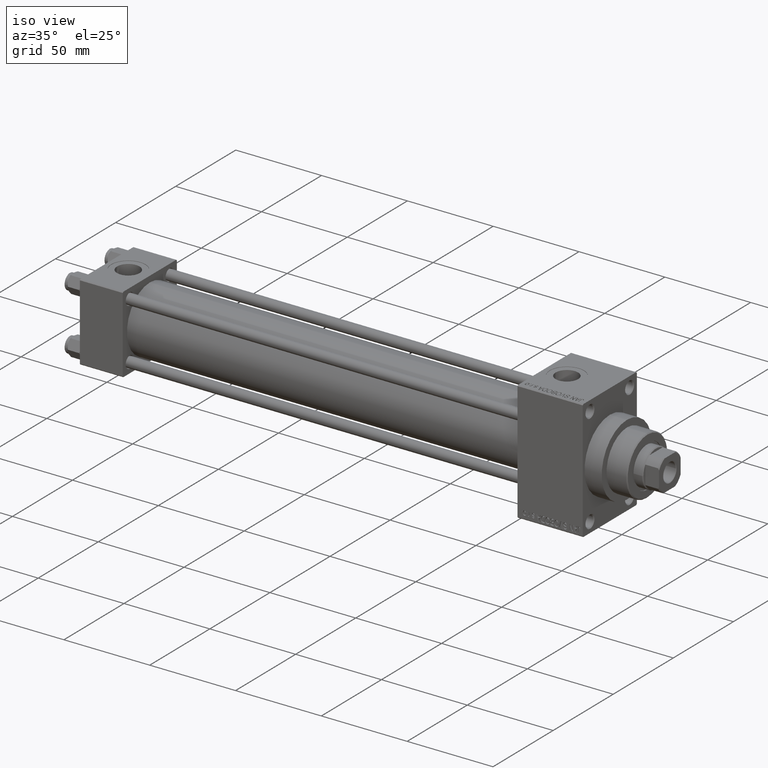
[diagram: clean part render]
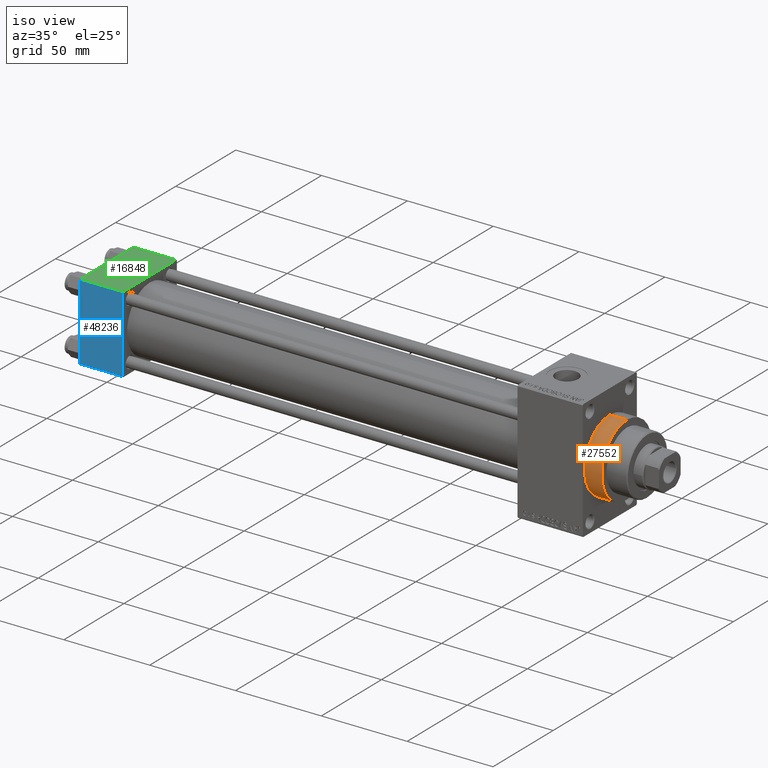
[diagram: same view with three faces highlighted in distinct colors, each labeled with its STEP entity id]
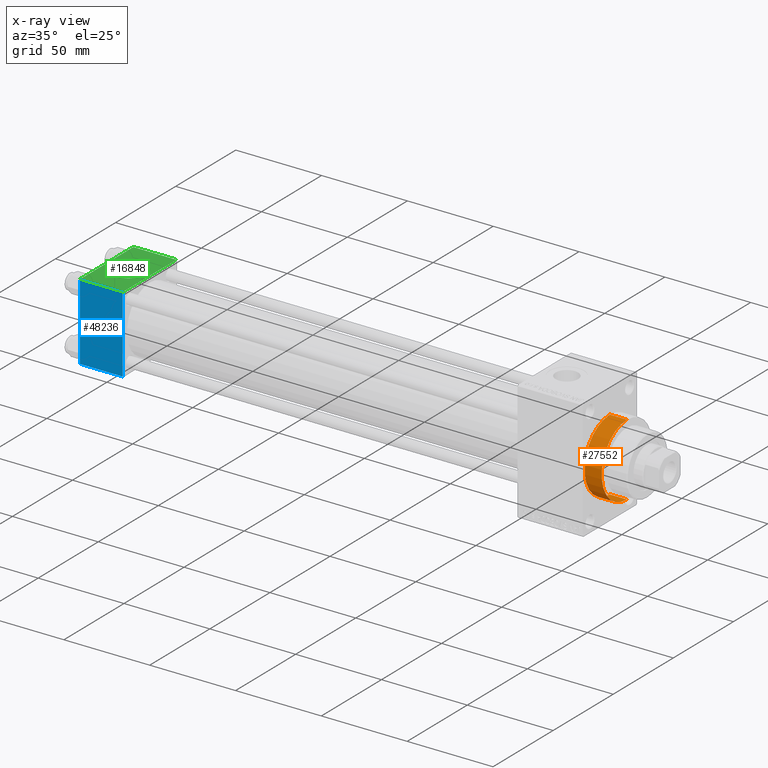
[diagram: x-ray of the same camera — body ghosted, the three highlighted faces saturated]
A machine part, iso view with three faces highlighted in distinct colors.
The next image is the same camera in x-ray (body ghosted, the three faces saturated) — at least one of them is partly hidden behind the body in this view.
Their STEP definitions:

[orange] entity #27552 — the highlighted cylindrical surface (partial cylindrical patch) has radius 21 mm, axis along (-1, -0, -0).
#678 = CARTESIAN_POINT ( 'NONE',  ( 303.0000000000000000, 0.000000000000000000, 21.00000000000000000 ) ) ;
#1925 = VERTEX_POINT ( 'NONE', #37284 ) ;
#4642 = CARTESIAN_POINT ( 'NONE',  ( 303.0000000000000000, 2.571758278209441661E-15, -21.00000000000000000 ) ) ;
#4906 = CARTESIAN_POINT ( 'NONE',  ( 293.0000000000000000, 0.000000000000000000, 21.00000000000000000 ) ) ;
#6281 = AXIS2_PLACEMENT_3D ( 'NONE', #22401, #22879, #14933 ) ;
#7090 = ORIENTED_EDGE ( 'NONE', *, *, #15720, .F. ) ;
#7867 = LINE ( 'NONE', #42134, #33520 ) ;
#7983 = DIRECTION ( 'NONE',  ( 1.000000000000000000, 0.000000000000000000, 0.000000000000000000 ) ) ;
#8349 = DIRECTION ( 'NONE',  ( -1.000000000000000000, -0.000000000000000000, -0.000000000000000000 ) ) ;
#9586 = EDGE_CURVE ( 'NONE', #46382, #25938, #9643, .T. ) ;
#9643 = CIRCLE ( 'NONE', #27090, 21.00000000000000000 ) ;
#10982 = DIRECTION ( 'NONE',  ( 0.000000000000000000, 0.000000000000000000, -1.000000000000000000 ) ) ;
#14271 = DIRECTION ( 'NONE',  ( 0.000000000000000000, 0.000000000000000000, 1.000000000000000000 ) ) ;
#14928 = CARTESIAN_POINT ( 'NONE',  ( 303.0000000000000000, 0.000000000000000000, 21.00000000000000000 ) ) ;
#14933 = DIRECTION ( 'NONE',  ( 0.000000000000000000, 0.000000000000000000, -1.000000000000000000 ) ) ;
#15720 = EDGE_CURVE ( 'NONE', #25938, #1925, #7867, .T. ) ;
#17693 = ORIENTED_EDGE ( 'NONE', *, *, #38659, .T. ) ;
#18011 = DIRECTION ( 'NONE',  ( -1.000000000000000000, -0.000000000000000000, -0.000000000000000000 ) ) ;
#22401 = CARTESIAN_POINT ( 'NONE',  ( 293.0000000000000000, 0.000000000000000000, 0.000000000000000000 ) ) ;
#22879 = DIRECTION ( 'NONE',  ( 1.000000000000000000, 0.000000000000000000, 0.000000000000000000 ) ) ;
#25305 = VECTOR ( 'NONE', #30322, 1000.000000000000000 ) ;
#25474 = CARTESIAN_POINT ( 'NONE',  ( 303.0000000000000000, 0.000000000000000000, 0.000000000000000000 ) ) ;
#25938 = VERTEX_POINT ( 'NONE', #4642 ) ;
#27090 = AXIS2_PLACEMENT_3D ( 'NONE', #38034, #7983, #10982 ) ;
#27552 = ADVANCED_FACE ( 'NONE', ( #36885 ), #44344, .T. ) ;
#29039 = AXIS2_PLACEMENT_3D ( 'NONE', #25474, #18011, #14271 ) ;
#29073 = ORIENTED_EDGE ( 'NONE', *, *, #31440, .T. ) ;
#29140 = CIRCLE ( 'NONE', #6281, 21.00000000000000000 ) ;
#30322 = DIRECTION ( 'NONE',  ( -1.000000000000000000, -0.000000000000000000, -0.000000000000000000 ) ) ;
#31440 = EDGE_CURVE ( 'NONE', #35130, #1925, #29140, .T. ) ;
#33520 = VECTOR ( 'NONE', #8349, 1000.000000000000000 ) ;
#33794 = LINE ( 'NONE', #14928, #25305 ) ;
#35088 = EDGE_LOOP ( 'NONE', ( #7090, #36739, #17693, #29073 ) ) ;
#35130 = VERTEX_POINT ( 'NONE', #4906 ) ;
#36739 = ORIENTED_EDGE ( 'NONE', *, *, #9586, .F. ) ;
#36885 = FACE_OUTER_BOUND ( 'NONE', #35088, .T. ) ;
#37284 = CARTESIAN_POINT ( 'NONE',  ( 293.0000000000000000, 2.571758278209441661E-15, -21.00000000000000000 ) ) ;
#38034 = CARTESIAN_POINT ( 'NONE',  ( 303.0000000000000000, 0.000000000000000000, 0.000000000000000000 ) ) ;
#38659 = EDGE_CURVE ( 'NONE', #46382, #35130, #33794, .T. ) ;
#42134 = CARTESIAN_POINT ( 'NONE',  ( 303.0000000000000000, 2.571758278209441661E-15, -21.00000000000000000 ) ) ;
#44344 = CYLINDRICAL_SURFACE ( 'NONE', #29039, 21.00000000000000000 ) ;
#46382 = VERTEX_POINT ( 'NONE', #678 ) ;

[blue] entity #48236 — the highlighted planar face has unit normal (0, 1, 0).
#2169 = VERTEX_POINT ( 'NONE', #29877 ) ;
#2190 = VECTOR ( 'NONE', #11076, 1000.000000000000000 ) ;
#2599 = CARTESIAN_POINT ( 'NONE',  ( 25.00000000000000000, -22.50000000000000000, 22.50000000000000000 ) ) ;
#3801 = DIRECTION ( 'NONE',  ( 0.000000000000000000, 0.000000000000000000, -1.000000000000000000 ) ) ;
#4560 = ORIENTED_EDGE ( 'NONE', *, *, #48311, .F. ) ;
#5414 = CARTESIAN_POINT ( 'NONE',  ( 25.00000000000000000, -22.50000000000000000, -21.99999999999998579 ) ) ;
#6129 = ORIENTED_EDGE ( 'NONE', *, *, #19772, .T. ) ;
#8860 = EDGE_LOOP ( 'NONE', ( #42587, #6129, #4560, #42039 ) ) ;
#11076 = DIRECTION ( 'NONE',  ( 0.000000000000000000, 0.000000000000000000, -1.000000000000000000 ) ) ;
#11876 = DIRECTION ( 'NONE',  ( 1.000000000000000000, 0.000000000000000000, 0.000000000000000000 ) ) ;
#13437 = VERTEX_POINT ( 'NONE', #13500 ) ;
#13500 = CARTESIAN_POINT ( 'NONE',  ( 25.00000000000000000, -22.50000000000000000, 22.00000000000000000 ) ) ;
#13996 = PLANE ( 'NONE',  #39785 ) ;
#15595 = VECTOR ( 'NONE', #25398, 1000.000000000000000 ) ;
#18176 = CARTESIAN_POINT ( 'NONE',  ( 25.00000000000000000, -22.50000000000000000, 22.00000000000000000 ) ) ;
#18466 = DIRECTION ( 'NONE',  ( 0.000000000000000000, -0.000000000000000000, 1.000000000000000000 ) ) ;
#18709 = CARTESIAN_POINT ( 'NONE',  ( 25.00000000000000000, -22.50000000000000000, 22.50000000000000000 ) ) ;
#19151 = VECTOR ( 'NONE', #3801, 1000.000000000000000 ) ;
#19772 = EDGE_CURVE ( 'NONE', #46455, #40535, #35212, .T. ) ;
#22185 = DIRECTION ( 'NONE',  ( -0.000000000000000000, 1.000000000000000000, 0.000000000000000000 ) ) ;
#24101 = VECTOR ( 'NONE', #11876, 1000.000000000000000 ) ;
#25398 = DIRECTION ( 'NONE',  ( -1.000000000000000000, 0.000000000000000000, 0.000000000000000000 ) ) ;
#29390 = CARTESIAN_POINT ( 'NONE',  ( 25.00000000000000000, -22.50000000000000000, -21.99999999999997158 ) ) ;
#29474 = LINE ( 'NONE', #33670, #2190 ) ;
#29877 = CARTESIAN_POINT ( 'NONE',  ( 0.000000000000000000, -22.50000000000000000, 22.00000000000000000 ) ) ;
#30198 = EDGE_CURVE ( 'NONE', #13437, #2169, #48483, .T. ) ;
#32616 = FACE_OUTER_BOUND ( 'NONE', #8860, .T. ) ;
#33670 = CARTESIAN_POINT ( 'NONE',  ( 0.000000000000000000, -22.50000000000000000, 22.50000000000000000 ) ) ;
#34069 = LINE ( 'NONE', #18709, #19151 ) ;
#35212 = LINE ( 'NONE', #5414, #24101 ) ;
#35265 = EDGE_CURVE ( 'NONE', #2169, #46455, #29474, .T. ) ;
#39785 = AXIS2_PLACEMENT_3D ( 'NONE', #2599, #22185, #18466 ) ;
#40535 = VERTEX_POINT ( 'NONE', #29390 ) ;
#41908 = CARTESIAN_POINT ( 'NONE',  ( 0.000000000000000000, -22.50000000000000000, -21.99999999999997158 ) ) ;
#42039 = ORIENTED_EDGE ( 'NONE', *, *, #30198, .T. ) ;
#42587 = ORIENTED_EDGE ( 'NONE', *, *, #35265, .T. ) ;
#46455 = VERTEX_POINT ( 'NONE', #41908 ) ;
#48236 = ADVANCED_FACE ( 'NONE', ( #32616 ), #13996, .F. ) ;
#48311 = EDGE_CURVE ( 'NONE', #13437, #40535, #34069, .T. ) ;
#48483 = LINE ( 'NONE', #18176, #15595 ) ;

[green] entity #16848 — the highlighted planar face has unit normal (0, 0, -1).
#1078 = CARTESIAN_POINT ( 'NONE',  ( 0.000000000000000000, 21.99999999999999289, 22.50000000000000355 ) ) ;
#1109 = CARTESIAN_POINT ( 'NONE',  ( 25.00000000000000000, 22.50000000000000000, 22.50000000000000355 ) ) ;
#3276 = AXIS2_PLACEMENT_3D ( 'NONE', #15475, #18977, #27163 ) ;
#4827 = FACE_BOUND ( 'NONE', #22054, .T. ) ;
#5317 = CARTESIAN_POINT ( 'NONE',  ( 25.00000000000000000, -21.99999999999997868, 22.50000000000000000 ) ) ;
#5448 = ORIENTED_EDGE ( 'NONE', *, *, #14045, .F. ) ;
#8028 = VERTEX_POINT ( 'NONE', #9937 ) ;
#8416 = EDGE_CURVE ( 'NONE', #25784, #8028, #27834, .T. ) ;
#9937 = CARTESIAN_POINT ( 'NONE',  ( 22.50000000000000000, -1.734723475976807094E-15, 22.50000000000000000 ) ) ;
#12756 = PLANE ( 'NONE',  #45451 ) ;
#13099 = CARTESIAN_POINT ( 'NONE',  ( 25.00000000000000000, 21.99999999999999289, 22.50000000000000355 ) ) ;
#13132 = LINE ( 'NONE', #32488, #37347 ) ;
#13284 = VERTEX_POINT ( 'NONE', #29960 ) ;
#13445 = CARTESIAN_POINT ( 'NONE',  ( 25.00000000000000000, 22.50000000000000000, 22.50000000000000355 ) ) ;
#14045 = EDGE_CURVE ( 'NONE', #8028, #25784, #24712, .T. ) ;
#15475 = CARTESIAN_POINT ( 'NONE',  ( 12.50000000000000000, -1.734723475976807094E-15, 22.50000000000000000 ) ) ;
#16412 = VECTOR ( 'NONE', #35863, 1000.000000000000000 ) ;
#16848 = ADVANCED_FACE ( 'NONE', ( #4827, #19972 ), #12756, .F. ) ;
#18094 = CARTESIAN_POINT ( 'NONE',  ( 2.500000000000003997, -5.100766768294543310E-16, 22.50000000000000000 ) ) ;
#18800 = LINE ( 'NONE', #26259, #33222 ) ;
#18977 = DIRECTION ( 'NONE',  ( 0.000000000000000000, 0.000000000000000000, 1.000000000000000000 ) ) ;
#19972 = FACE_OUTER_BOUND ( 'NONE', #21422, .T. ) ;
#20226 = CARTESIAN_POINT ( 'NONE',  ( 0.000000000000000000, 22.50000000000000000, 22.50000000000000355 ) ) ;
#21422 = EDGE_LOOP ( 'NONE', ( #31623, #25468, #47560, #22449 ) ) ;
#21975 = DIRECTION ( 'NONE',  ( 0.000000000000000000, 0.000000000000000000, 1.000000000000000000 ) ) ;
#22054 = EDGE_LOOP ( 'NONE', ( #5448, #30860 ) ) ;
#22449 = ORIENTED_EDGE ( 'NONE', *, *, #46228, .T. ) ;
#24712 = CIRCLE ( 'NONE', #44576, 9.999999999999998224 ) ;
#25468 = ORIENTED_EDGE ( 'NONE', *, *, #39106, .T. ) ;
#25784 = VERTEX_POINT ( 'NONE', #18094 ) ;
#26259 = CARTESIAN_POINT ( 'NONE',  ( 25.00000000000000000, -21.99999999999999289, 22.50000000000000000 ) ) ;
#27163 = DIRECTION ( 'NONE',  ( 1.000000000000000000, 0.000000000000000000, 0.000000000000000000 ) ) ;
#27593 = VECTOR ( 'NONE', #43025, 1000.000000000000000 ) ;
#27834 = CIRCLE ( 'NONE', #3276, 9.999999999999998224 ) ;
#28299 = DIRECTION ( 'NONE',  ( -1.000000000000000000, 0.000000000000000000, 0.000000000000000000 ) ) ;
#29960 = CARTESIAN_POINT ( 'NONE',  ( 0.000000000000000000, -21.99999999999997868, 22.50000000000000000 ) ) ;
#30860 = ORIENTED_EDGE ( 'NONE', *, *, #8416, .F. ) ;
#31386 = DIRECTION ( 'NONE',  ( 0.000000000000000000, 7.709882115452476934E-17, -1.000000000000000000 ) ) ;
#31623 = ORIENTED_EDGE ( 'NONE', *, *, #34684, .T. ) ;
#31626 = DIRECTION ( 'NONE',  ( 0.000000000000000000, 1.000000000000000000, 7.709882115452476934E-17 ) ) ;
#32488 = CARTESIAN_POINT ( 'NONE',  ( 0.000000000000000000, 21.99999999999999289, 22.50000000000000355 ) ) ;
#33222 = VECTOR ( 'NONE', #33928, 1000.000000000000000 ) ;
#33396 = VERTEX_POINT ( 'NONE', #5317 ) ;
#33928 = DIRECTION ( 'NONE',  ( 1.000000000000000000, 0.000000000000000000, 0.000000000000000000 ) ) ;
#34684 = EDGE_CURVE ( 'NONE', #41626, #13284, #47053, .T. ) ;
#35863 = DIRECTION ( 'NONE',  ( 0.000000000000000000, -1.000000000000000000, -7.709882115452476934E-17 ) ) ;
#36724 = EDGE_CURVE ( 'NONE', #38986, #33396, #42774, .T. ) ;
#37347 = VECTOR ( 'NONE', #28299, 1000.000000000000000 ) ;
#37365 = CARTESIAN_POINT ( 'NONE',  ( 12.50000000000000000, -1.734723475976807094E-15, 22.50000000000000000 ) ) ;
#38986 = VERTEX_POINT ( 'NONE', #13099 ) ;
#39106 = EDGE_CURVE ( 'NONE', #13284, #33396, #18800, .T. ) ;
#41626 = VERTEX_POINT ( 'NONE', #1078 ) ;
#42774 = LINE ( 'NONE', #13445, #27593 ) ;
#43025 = DIRECTION ( 'NONE',  ( 0.000000000000000000, -1.000000000000000000, -7.709882115452476934E-17 ) ) ;
#44338 = DIRECTION ( 'NONE',  ( 1.000000000000000000, 0.000000000000000000, 0.000000000000000000 ) ) ;
#44576 = AXIS2_PLACEMENT_3D ( 'NONE', #37365, #21975, #44338 ) ;
#45451 = AXIS2_PLACEMENT_3D ( 'NONE', #1109, #31386, #31626 ) ;
#46228 = EDGE_CURVE ( 'NONE', #38986, #41626, #13132, .T. ) ;
#47053 = LINE ( 'NONE', #20226, #16412 ) ;
#47560 = ORIENTED_EDGE ( 'NONE', *, *, #36724, .F. ) ;